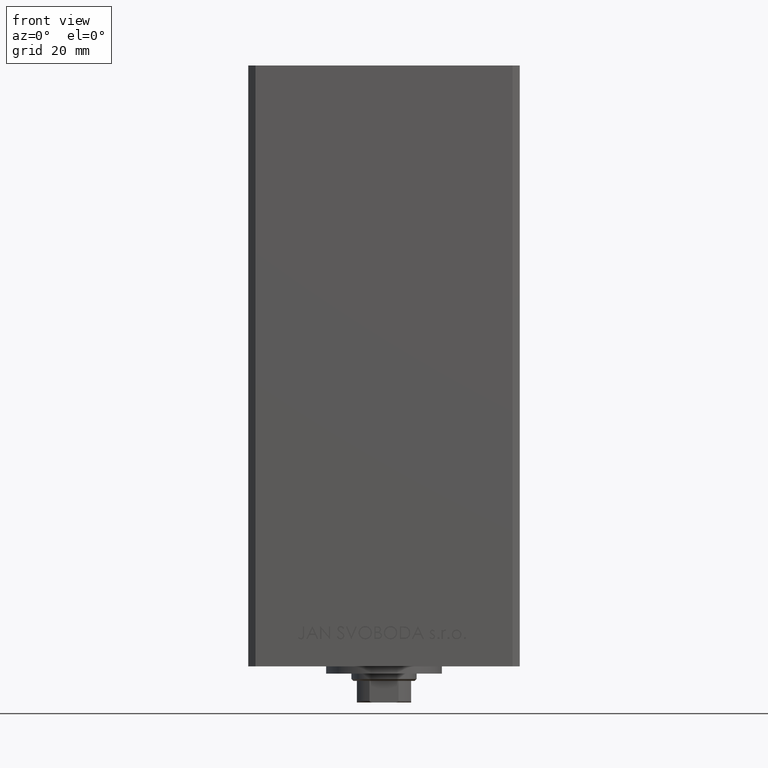
[diagram: clean part render]
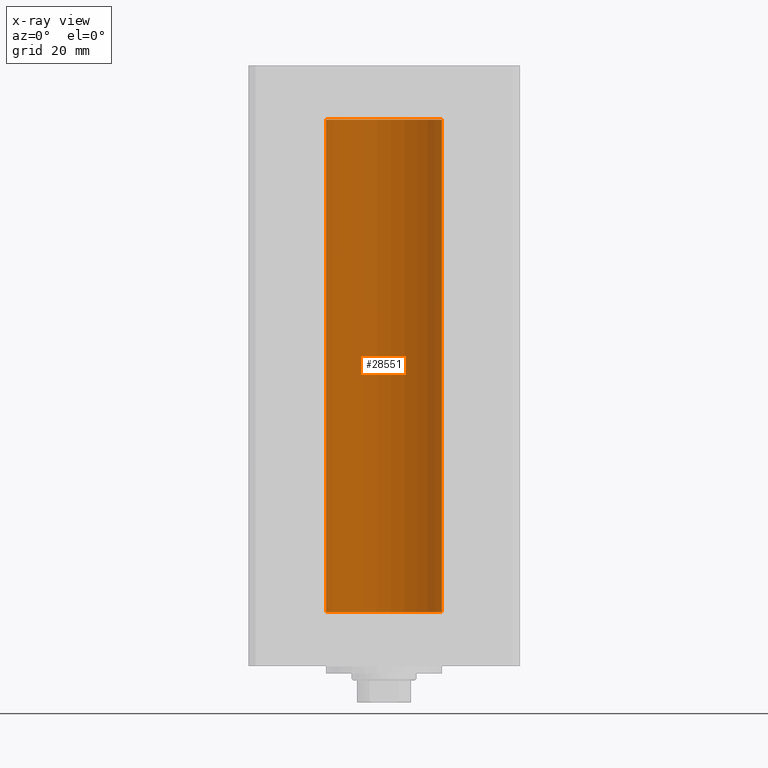
[diagram: x-ray — body ghosted, one internal face saturated and labeled with its STEP entity id]
A machine part, front view, then the same camera in x-ray: the body is ghosted and one INTERNAL B-rep face — a face not visible from any outside direction — is saturated and labeled: STEP entity #28551.
In plain terms, the highlighted cylindrical surface (partial cylindrical patch) has radius 16 mm, axis along (-0, -0, -1).
Its self-contained STEP definition (entity closure, byte-faithful):
#318 = CARTESIAN_POINT ( 'NONE',  ( 16.00000000000000000, 1.959434878635765131E-15, 0.000000000000000000 ) ) ;
#1080 = VECTOR ( 'NONE', #42449, 1000.000000000000000 ) ;
#1943 = EDGE_CURVE ( 'NONE', #44423, #46766, #39844, .T. ) ;
#5035 = CARTESIAN_POINT ( 'NONE',  ( 0.000000000000000000, 0.000000000000000000, 136.0000000000000000 ) ) ;
#5312 = LINE ( 'NONE', #39481, #1080 ) ;
#7384 = DIRECTION ( 'NONE',  ( -0.000000000000000000, -0.000000000000000000, -1.000000000000000000 ) ) ;
#7897 = DIRECTION ( 'NONE',  ( -0.000000000000000000, -0.000000000000000000, -1.000000000000000000 ) ) ;
#7958 = EDGE_CURVE ( 'NONE', #47147, #46766, #5312, .T. ) ;
#9563 = CIRCLE ( 'NONE', #28565, 16.00000000000000000 ) ;
#11516 = DIRECTION ( 'NONE',  ( -0.000000000000000000, 0.000000000000000000, 1.000000000000000000 ) ) ;
#12223 = EDGE_CURVE ( 'NONE', #16435, #44423, #41309, .T. ) ;
#16085 = AXIS2_PLACEMENT_3D ( 'NONE', #17189, #21161, #31823 ) ;
#16148 = DIRECTION ( 'NONE',  ( 1.000000000000000000, 0.000000000000000000, 0.000000000000000000 ) ) ;
#16435 = VERTEX_POINT ( 'NONE', #24782 ) ;
#17189 = CARTESIAN_POINT ( 'NONE',  ( 0.000000000000000000, 0.000000000000000000, 0.000000000000000000 ) ) ;
#21161 = DIRECTION ( 'NONE',  ( -0.000000000000000000, 0.000000000000000000, 1.000000000000000000 ) ) ;
#24149 = ORIENTED_EDGE ( 'NONE', *, *, #1943, .F. ) ;
#24782 = CARTESIAN_POINT ( 'NONE',  ( 16.00000000000000000, 1.959434878635765131E-15, 136.0000000000000000 ) ) ;
#26480 = FACE_OUTER_BOUND ( 'NONE', #48246, .T. ) ;
#28551 = ADVANCED_FACE ( 'NONE', ( #26480 ), #48739, .F. ) ;
#28565 = AXIS2_PLACEMENT_3D ( 'NONE', #5035, #11516, #16148 ) ;
#29665 = CARTESIAN_POINT ( 'NONE',  ( 16.00000000000000000, 1.959434878635765131E-15, 136.0000000000000000 ) ) ;
#30364 = ORIENTED_EDGE ( 'NONE', *, *, #48007, .T. ) ;
#31823 = DIRECTION ( 'NONE',  ( 1.000000000000000000, 0.000000000000000000, 0.000000000000000000 ) ) ;
#32685 = ORIENTED_EDGE ( 'NONE', *, *, #7958, .T. ) ;
#38103 = CARTESIAN_POINT ( 'NONE',  ( 0.000000000000000000, 0.000000000000000000, 136.0000000000000000 ) ) ;
#39172 = VECTOR ( 'NONE', #7384, 1000.000000000000000 ) ;
#39243 = ORIENTED_EDGE ( 'NONE', *, *, #12223, .F. ) ;
#39481 = CARTESIAN_POINT ( 'NONE',  ( -16.00000000000000000, 0.000000000000000000, 136.0000000000000000 ) ) ;
#39641 = AXIS2_PLACEMENT_3D ( 'NONE', #38103, #7897, #41588 ) ;
#39844 = CIRCLE ( 'NONE', #16085, 16.00000000000000000 ) ;
#40891 = CARTESIAN_POINT ( 'NONE',  ( -16.00000000000000000, 0.000000000000000000, 136.0000000000000000 ) ) ;
#41309 = LINE ( 'NONE', #29665, #39172 ) ;
#41588 = DIRECTION ( 'NONE',  ( -1.000000000000000000, 0.000000000000000000, 0.000000000000000000 ) ) ;
#42449 = DIRECTION ( 'NONE',  ( -0.000000000000000000, -0.000000000000000000, -1.000000000000000000 ) ) ;
#43005 = CARTESIAN_POINT ( 'NONE',  ( -16.00000000000000000, 0.000000000000000000, 0.000000000000000000 ) ) ;
#44423 = VERTEX_POINT ( 'NONE', #318 ) ;
#46766 = VERTEX_POINT ( 'NONE', #43005 ) ;
#47147 = VERTEX_POINT ( 'NONE', #40891 ) ;
#48007 = EDGE_CURVE ( 'NONE', #16435, #47147, #9563, .T. ) ;
#48246 = EDGE_LOOP ( 'NONE', ( #39243, #30364, #32685, #24149 ) ) ;
#48739 = CYLINDRICAL_SURFACE ( 'NONE', #39641, 16.00000000000000000 ) ;